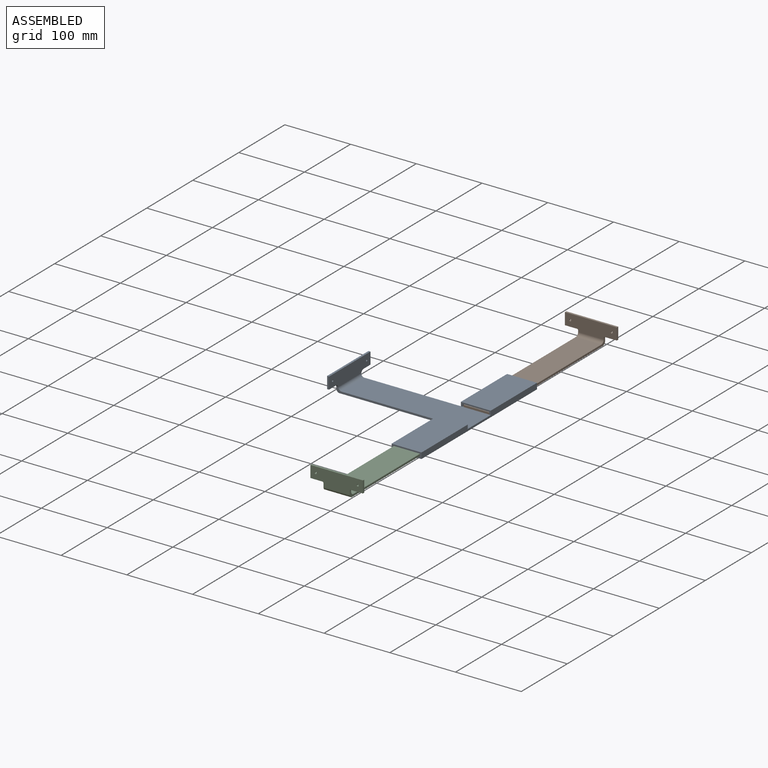
[diagram: assembled view]
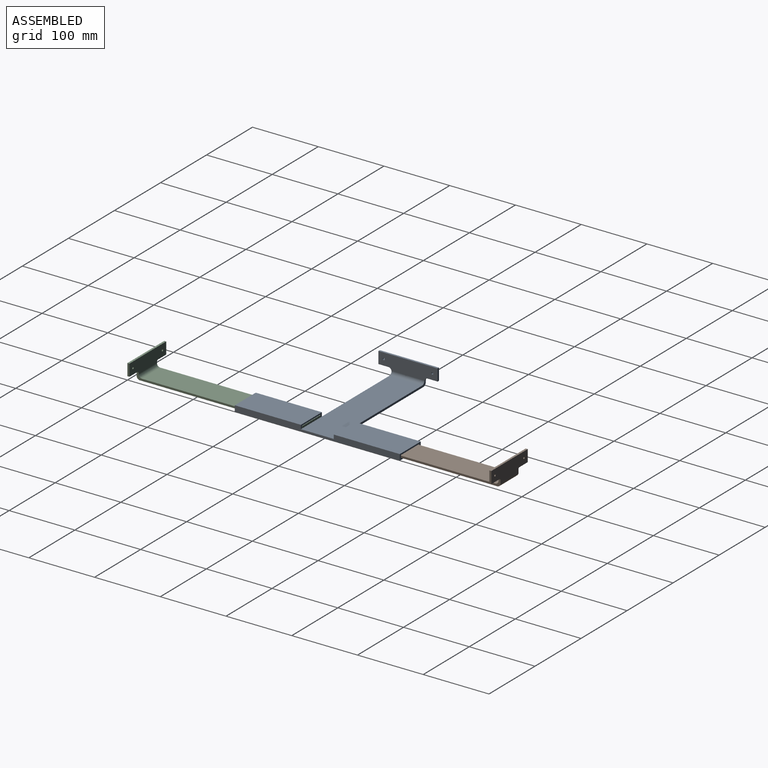
[diagram: assembled view, second angle]
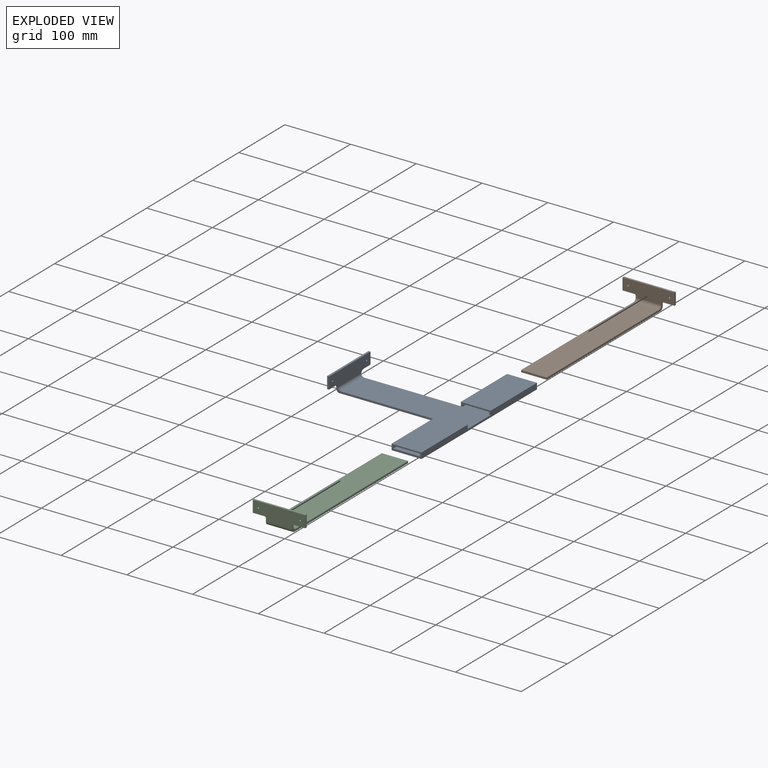
[diagram: exploded view]
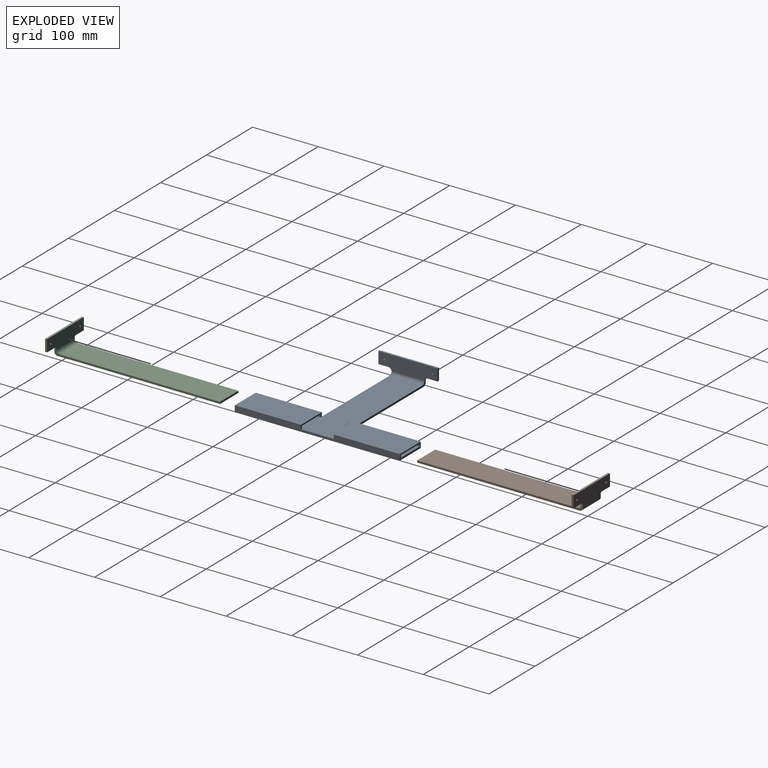
[diagram: exploded view, second angle]
ASSEMBLY  parts=3 mates=2
PART A: 32 faces, bbox 200x251x30 mm
  f0: plane 45.5x6mm, normal (0,-1,0), area 119.1mm2, adj f2,f3,f4,f5,f12,f13,f14
  f1: plane 45.5x9mm, normal (0,1,0), area 255.6mm2, adj f2,f3,f4,f5,f12,f13,f14,f15
  f2: plane 100.5x45.5mm, normal (0,0,1), area 4572.7mm2, adj f0,f1,f3,f12
  f3: plane 100.5x9mm, normal (-1,0,0), area 904.5mm2, adj f0,f1,f2,f15,f17
  f4: plane 100.5x3.8mm, normal (1,0,0), area 381.9mm2, adj f0,f1,f5,f14
  f5: plane 100.5x40.5mm, normal (0,0,-1), area 4070.2mm2, adj f0,f1,f4,f13
  f6: plane 45.5x9mm, normal (0,-1,0), area 255.6mm2, adj f8,f9,f10,f11,f12,f14,f15,f18
  f7: plane 45.5x6mm, normal (0,1,0), area 119.1mm2, adj f8,f9,f10,f11,f12,f14,f18
  f8: plane 100.5x45.5mm, normal (0,0,1), area 4572.7mm2, adj f6,f7,f9,f12
  f9: plane 100.5x9mm, normal (-1,0,0), area 904.5mm2, adj f6,f7,f8,f15,f16
  f10: plane 100.5x3.8mm, normal (1,0,0), area 381.9mm2, adj f6,f7,f11,f14
  f11: plane 100.5x40.5mm, normal (0,0,-1), area 4070.2mm2, adj f6,f7,f10,f18
  f12: plane 251x9mm, normal (1,0,0), area 1959mm2, adj f0,f1,f2,f6,f7,f8,f14,f15
  f13: plane 100.5x3.8mm, normal (-1,0,0), area 381.9mm2, adj f0,f1,f5,f14
  f14: plane 251x192mm, normal (0,0,1), area 17740.5mm2, adj f0,f1,f4,f6,f7,f10,f12,f13
  f15: plane 251x195mm, normal (0,0,-1), area 18895.5mm2, adj f1,f3,f6,f9,f12,f16,f17,f23
  f16: plane 154.5x7mm, normal (0,-1,0), area 475.5mm2, adj f9,f14,f15,f19,f22,f23,f29
  f17: plane 154.5x7mm, normal (0,1,0), area 475.5mm2, adj f3,f14,f15,f19,f22,f23,f28
  f18: plane 100.5x3.8mm, normal (-1,0,0), area 381.9mm2, adj f6,f7,f11,f14
  f19: plane 90x25mm, normal (-1,0,0), area 1966.6mm2, adj f16,f17,f21,f23,f24,f25,f26,f27
  f20: plane 90x22mm, normal (1,0,0), area 1816.5mm2, adj f21,f22,f24,f25,f26,f27,f28,f29
  f21: plane 90x3mm, normal (0,0,1), area 270mm2, adj f19,f20,f24,f27
  f22: cylinder r=5mm len=50.2mm, axis (0,1,0), area 392.8mm2, adj f14,f16,f17,f20,f28,f29
  f23: cylinder r=5mm len=50mm, axis (0,-1,0), area 392.7mm2, adj f15,f16,f17,f19
  f24: plane 18x3mm, normal (0,-1,0), area 54mm2, adj f19,f20,f21,f25
  f25: plane 15x3mm, normal (0,0,-1), area 45mm2, adj f19,f20,f24,f29
  f26: plane 15x3mm, normal (0,0,-1), area 45mm2, adj f19,f20,f27,f28
  f27: plane 18x3mm, normal (0,1,0), area 54mm2, adj f19,f20,f21,f26
  f28: cylinder r=5mm len=5mm, axis (-1,0,0), area 23.6mm2, adj f17,f19,f20,f22,f26
  f29: cylinder r=5mm len=5mm, axis (-1,0,0), area 23.6mm2, adj f16,f19,f20,f22,f25
  f30: cylinder r=1.5mm len=3mm, axis (1,0,0), area 28.3mm2, adj f19,f20
  f31: cylinder r=1.5mm len=3mm, axis (1,0,0), area 28.3mm2, adj f19,f20
PART B: 18 faces, bbox 252x79x30 mm
  f0: plane 79x3mm, normal (0,0,1), area 237mm2, adj f3,f5,f6,f7
  f1: cylinder r=1.87mm len=3mm, axis (1,0,0), area 8mm2, adj f2,f5,f6,f12
  f2: plane 18.29x3mm, normal (0,0,-1), area 54.9mm2, adj f1,f3,f5,f6
  f3: plane 18x3mm, normal (0,1,0), area 54mm2, adj f0,f2,f5,f6
  f4: cylinder r=1.5mm len=3mm, axis (1,0,0), area 28.3mm2, adj f5,f6
  f5: plane 79x25mm, normal (-1,0,0), area 1682.3mm2, adj f0,f1,f2,f3,f4,f7,f8,f9
  f6: plane 79x22mm, normal (1,0,0), area 1565.3mm2, adj f0,f1,f2,f3,f4,f7,f8,f9
  f7: plane 18x3mm, normal (0,-1,0), area 54mm2, adj f0,f5,f6,f8
  f8: plane 18.29x3mm, normal (0,0,-1), area 54.9mm2, adj f5,f6,f7,f10
  f9: cylinder r=1.5mm len=3mm, axis (1,0,0), area 28.3mm2, adj f5,f6
  f10: cylinder r=1.87mm len=3mm, axis (1,0,0), area 8mm2, adj f5,f6,f8,f13
  f11: plane 244x39mm, normal (0,0,1), area 9516mm2, adj f12,f13,f14,f16
  f12: plane 252x10.24mm, normal (0,1,0), area 777.7mm2, adj f1,f5,f6,f11,f14,f15,f16,f17
  f13: plane 252x10.24mm, normal (0,-1,0), area 777.7mm2, adj f5,f6,f10,f11,f14,f15,f16,f17
  f14: plane 39x3mm, normal (1,0,0), area 117mm2, adj f11,f12,f13,f15
  f15: plane 247x39mm, normal (0,0,-1), area 9633mm2, adj f12,f13,f14,f17
  f16: cylinder r=5mm len=39mm, axis (0,1,0), area 306.3mm2, adj f6,f11,f12,f13
  f17: cylinder r=5mm len=39mm, axis (0,-1,0), area 306.3mm2, adj f5,f12,f13,f15
PART C: 18 faces, bbox 252x80x30 mm
  f0: plane 80x3mm, normal (0,0,1), area 240mm2, adj f3,f5,f6,f7
  f1: cylinder r=1.87mm len=3mm, axis (1,0,0), area 8mm2, adj f2,f5,f6,f12
  f2: plane 18.29x3mm, normal (0,0,-1), area 54.9mm2, adj f1,f3,f5,f6
  f3: plane 18x3mm, normal (0,1,0), area 54mm2, adj f0,f2,f5,f6
  f4: cylinder r=1.5mm len=3mm, axis (1,0,0), area 28.3mm2, adj f5,f6
  f5: plane 80x25mm, normal (-1,0,0), area 1707.3mm2, adj f0,f1,f2,f3,f4,f7,f8,f9
  f6: plane 80x22mm, normal (1,0,0), area 1587.3mm2, adj f0,f1,f2,f3,f4,f7,f8,f9
  f7: plane 18x3mm, normal (0,-1,0), area 54mm2, adj f0,f5,f6,f8
  f8: plane 18.29x3mm, normal (0,0,-1), area 54.9mm2, adj f5,f6,f7,f10
  f9: cylinder r=1.5mm len=3mm, axis (1,0,0), area 28.3mm2, adj f5,f6
  f10: cylinder r=1.87mm len=3mm, axis (1,0,0), area 8mm2, adj f5,f6,f8,f13
  f11: plane 244x40mm, normal (0,0,1), area 9760mm2, adj f12,f13,f14,f16
  f12: plane 252x10.24mm, normal (0,1,0), area 777.7mm2, adj f1,f5,f6,f11,f14,f15,f16,f17
  f13: plane 252x10.24mm, normal (0,-1,0), area 777.7mm2, adj f5,f6,f10,f11,f14,f15,f16,f17
  f14: plane 40x3mm, normal (1,0,0), area 120mm2, adj f11,f12,f13,f15
  f15: plane 247x40mm, normal (0,0,-1), area 9880mm2, adj f12,f13,f14,f17
  f16: cylinder r=5mm len=40mm, axis (0,1,0), area 314.2mm2, adj f6,f11,f12,f13
  f17: cylinder r=5mm len=40mm, axis (0,-1,0), area 314.2mm2, adj f5,f12,f13,f15
PLACE A t=(-10,0,0)mm
PLACE B rot(axis=(0,0,-1),90deg) t=(99.5,151,3)mm
PLACE C rot(axis=(0,0,1),90deg) t=(88,-151,3)mm
MATE fastened C.f14 <-> A.f7  axis (0,1,0) through (73,-25,3)mm
MATE fastened B.f14 <-> A.f0  axis (0,-1,0) through (113.5,25,3)mm
